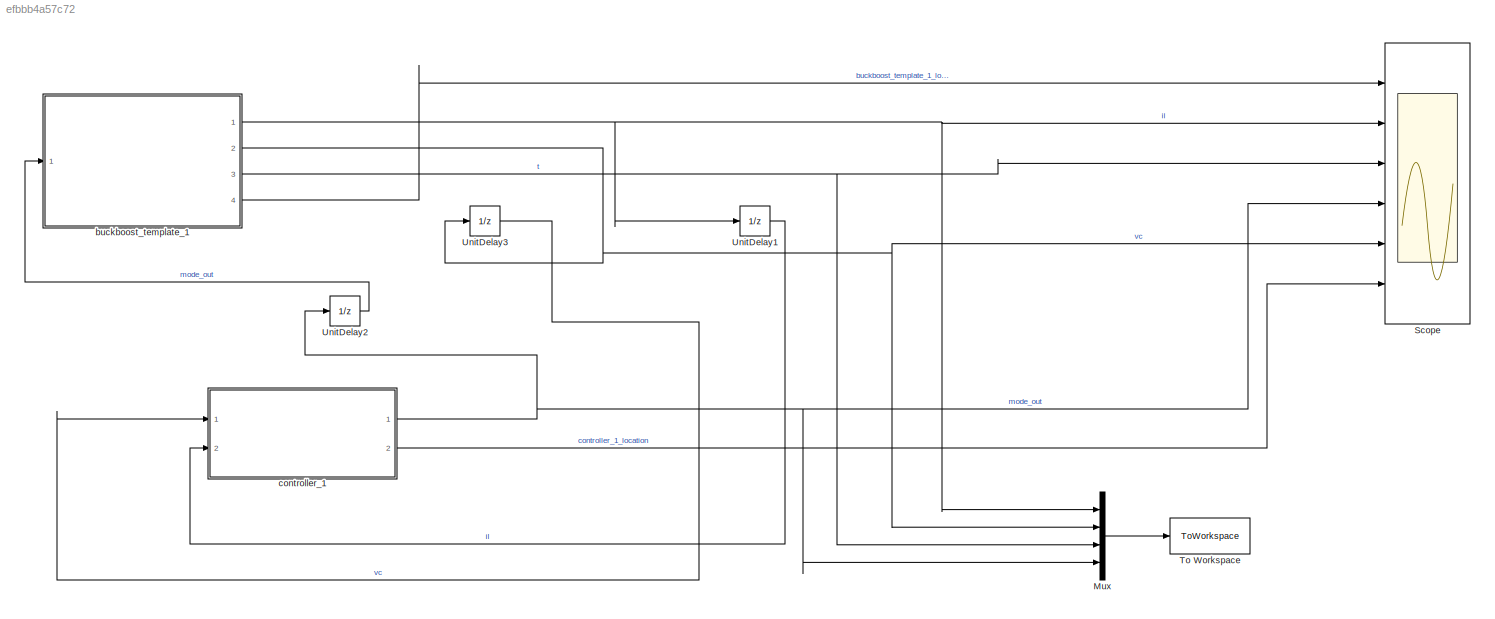
MODEL slx_efbbb4a57c72
KIND model
CONFIG AbsTol = auto
CONFIG EnableMultiTasking = off
CONFIG FixedStep = 0.0001
CONFIG MaxStep = auto
CONFIG MinStep = auto
CONFIG RelTol = 1e-3
CONFIG SampleTimeConstraint = Unconstrained
CONFIG Solver = VariableStepAuto
CONFIG SolverName = VariableStepAuto
CONFIG StartTime = 0.0
CONFIG StopTime = T
BLOCK [Mux] Mux
  DisplayOption = bar
  Ports = [4, 1]
BLOCK [Scope] Scope
  Floating = off
  NumInputPorts = 6
  Ports = [6]
  ScopeSpecificationString = Simulink.scopes.TimeScopeBlockCfg('CurrentConfiguration', extmgr.ConfigurationSet(extmgr.Configuration('Core','General UI',true),extmgr.Configuration('Core','Source UI',true),extmgr.Configuration('Sources','WiredSimulink',true,'DataLoggingSaveFormat','Structure'),extmgr.Configuration('Visuals','Time Domain',true,'SerializedDisplays',{struct('MinYLimReal','-2.13882','MaxYLimReal','19.24934','YLabel...<+1510ch>
BLOCK [ToWorkspace] To Workspace
  FixptAsFi = on
  MaxDataPoints = inf
  Ports = [1]
  SampleTime = Ts
  Save2DSignal = 3-D array (concatenate along third dimension)
  VariableName = xout
BLOCK [UnitDelay] UnitDelay1
  SampleTime = 1/500000
BLOCK [UnitDelay] UnitDelay2
  SampleTime = 1/500000
BLOCK [UnitDelay] UnitDelay3
  SampleTime = 1/500000
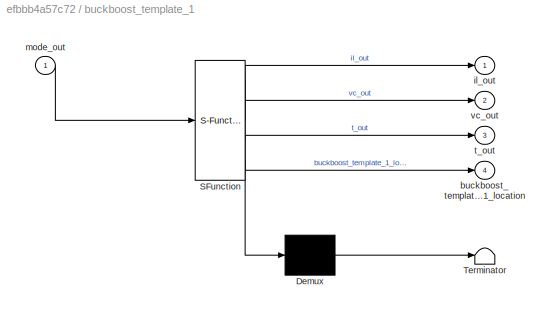
BLOCK [SubSystem] buckboost_template_1
  ErrorFcn = Stateflow.Translate.translate
  PermitHierarchicalResolution = ExplicitOnly
  Ports = [1, 4]
  RequestExecContextInheritance = off
  SFBlockType = Chart
  TreatAsAtomicUnit = on
BLOCK [Demux] buckboost_template_1/ Demux 
  Outputs = 1
  Ports = [1, 1]
BLOCK [S-Function] buckboost_template_1/ SFunction 
  EnableBusSupport = on
  FunctionName = sf_sfun
  PortCounts = [1 5]
  Ports = [1, 5]
  SFcnIsStateOwnerBlock = off
  SFunctionDeploymentMode = off
  Tag = Stateflow S-Function buck_dcm_vs1 3
BLOCK [Terminator] buckboost_template_1/ Terminator 
BLOCK [Outport] buckboost_template_1/buckboost_template_1_location
  IconDisplay = Port number
  Port = 4
BLOCK [Outport] buckboost_template_1/il_out
  IconDisplay = Port number
BLOCK [Inport] buckboost_template_1/mode_out
  IconDisplay = Port number
BLOCK [Outport] buckboost_template_1/t_out
  IconDisplay = Port number
  Port = 3
BLOCK [Outport] buckboost_template_1/vc_out
  IconDisplay = Port number
  Port = 2
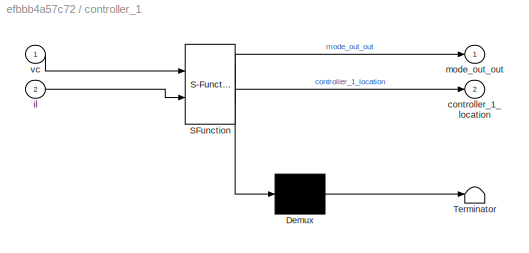
BLOCK [SubSystem] controller_1
  ErrorFcn = Stateflow.Translate.translate
  PermitHierarchicalResolution = ExplicitOnly
  Ports = [2, 2]
  RequestExecContextInheritance = off
  SFBlockType = Chart
  TreatAsAtomicUnit = on
BLOCK [Demux] controller_1/ Demux 
  Outputs = 1
  Ports = [1, 1]
BLOCK [S-Function] controller_1/ SFunction 
  EnableBusSupport = on
  FunctionName = sf_sfun
  PortCounts = [2 3]
  Ports = [2, 3]
  SFcnIsStateOwnerBlock = off
  SFunctionDeploymentMode = off
  Tag = Stateflow S-Function buck_dcm_vs1 1
BLOCK [Terminator] controller_1/ Terminator 
BLOCK [Outport] controller_1/controller_1_location
  IconDisplay = Port number
  Port = 2
BLOCK [Inport] controller_1/il
  IconDisplay = Port number
  Port = 2
BLOCK [Outport] controller_1/mode_out_out
  IconDisplay = Port number
BLOCK [Inport] controller_1/vc
  IconDisplay = Port number
LINE Mux:1 -> To Workspace:1
LINE UnitDelay1:1 -> controller_1:2
LINE UnitDelay2:1 -> buckboost_template_1:1
LINE UnitDelay3:1 -> controller_1:1
NET buckboost_template_1:1 -> Mux:1, Scope:2, UnitDelay1:1
NET buckboost_template_1:2 -> Mux:2, Scope:5, UnitDelay3:1
NET buckboost_template_1:3 -> Mux:3, Scope:3
LINE buckboost_template_1:4 -> Scope:1
NET controller_1:1 -> Mux:4, Scope:4, UnitDelay2:1
LINE controller_1:2 -> Scope:6
note: NET lines group one-source signal fan-out (src -> all destinations, sorted); 1:1 wires keep LINE
CHART controller_1 states=2 transitions=5
  STATE_LABEL 'controller_11\nentry:\nmode_out_out=mode_out;\ncontroller_1_location  =1;'
  STATE_LABEL 'controller_12\nentry:\nmode_out_out=mode_out;\ncontroller_1_location  =2;'
CHART buckboost_template_1 states=3 transitions=5
  STATE_LABEL 'charging\ndu:\nil_dot = a00c * il + a01c * vc + b0c * Vs;\nvc_dot = a10c * il + a11c * vc + b1c * Vs;\nt_dot = 1;\nil_out=il;\nvc_out=vc;\nt_out=t;\nbuckboost_template_1_location =1;'
  STATE_LABEL 'discharging\ndu:\nil_dot = a00o * il + a01o * vc + b0o * Vs;\nvc_dot = a10o * il + a11o * vc + b1o * Vs;\nt_dot = 1;\nil_out=il;\nvc_out=vc;\nt_out=t;\nbuckboost_template_1_location =2;'
  STATE_LABEL 'dcm\ndu:\nil_dot = 0;\nvc_dot = a11o * vc + b1o * Vs;\nt_dot = 1;\nil_out=il;\nvc_out=vc;\nt_out=t;\nbuckboost_template_1_location =3;'
